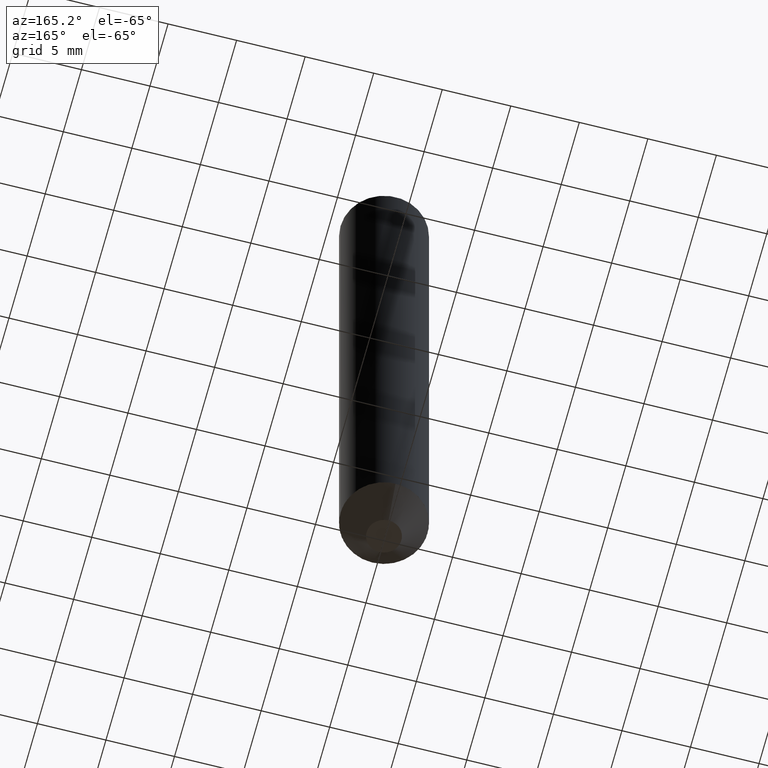
[diagram: clean part render]
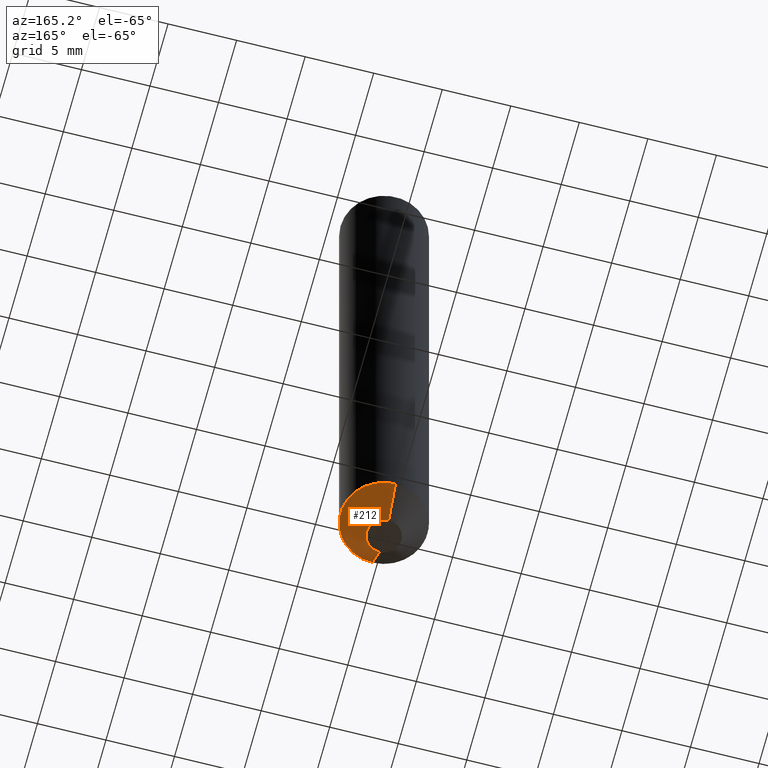
[diagram: same view with one face highlighted and labeled with its STEP entity id]
A machine part, auxiliary view. The second image highlights one B-rep face of the part: STEP entity #212.
In plain terms, the highlighted conical surface has half-angle 41.192 deg.
Its self-contained STEP definition (entity closure, byte-faithful):
#3 = CARTESIAN_POINT ( 'NONE',  ( -8.575622497213927331E-16, -0.1250000000000064115, -1.914303206326506412 ) ) ;
#11 = EDGE_CURVE ( 'NONE', #375, #396, #174, .T. ) ;
#22 = DIRECTION ( 'NONE',  ( -6.982962677686265922E-15, -1.000000000000000000, 4.370956789862834560E-15 ) ) ;
#35 = VERTEX_POINT ( 'NONE', #3 ) ;
#61 = DIRECTION ( 'NONE',  ( 6.982962677686265922E-15, 1.000000000000000000, -4.370956789862834560E-15 ) ) ;
#63 = EDGE_LOOP ( 'NONE', ( #146, #306, #177, #162 ) ) ;
#67 = AXIS2_PLACEMENT_3D ( 'NONE', #351, #349, #61 ) ;
#74 = CARTESIAN_POINT ( 'NONE',  ( -8.728703347107337392E-16, -0.1250000000000063005, -1.914303206326506412 ) ) ;
#80 = DIRECTION ( 'NONE',  ( 2.446198854709447971E-29, -3.490435867804550332E-15, -1.000000000000000000 ) ) ;
#103 = CARTESIAN_POINT ( 'NONE',  ( -6.110092342974980473E-16, -0.05000000000000672656, -1.999999999999999778 ) ) ;
#120 = VERTEX_POINT ( 'NONE', #236 ) ;
#126 = CARTESIAN_POINT ( 'NONE',  ( 8.881784197001692113E-16, 0.1249999999999929501, -1.914303206326507523 ) ) ;
#146 = ORIENTED_EDGE ( 'NONE', *, *, #11, .F. ) ;
#158 = FACE_OUTER_BOUND ( 'NONE', #63, .T. ) ;
#162 = ORIENTED_EDGE ( 'NONE', *, *, #354, .F. ) ;
#163 = DIRECTION ( 'NONE',  ( 4.679497495853047431E-15, 0.6585807243314101278, 0.7525100860049086515 ) ) ;
#164 = CIRCLE ( 'NONE', #67, 0.1249999999999996253 ) ;
#165 = LINE ( 'NONE', #74, #183 ) ;
#174 = CIRCLE ( 'NONE', #332, 0.04999999999999973910 ) ;
#177 = ORIENTED_EDGE ( 'NONE', *, *, #259, .T. ) ;
#183 = VECTOR ( 'NONE', #374, 39.37007874015748854 ) ;
#186 = DIRECTION ( 'NONE',  ( -2.446198854709447971E-29, 3.490435867804550332E-15, 1.000000000000000000 ) ) ;
#212 = ADVANCED_FACE ( 'NONE', ( #158 ), #296, .T. ) ;
#236 = CARTESIAN_POINT ( 'NONE',  ( 8.728703347108266276E-16, 0.1249999999999928252, -1.914303206326507523 ) ) ;
#248 = AXIS2_PLACEMENT_3D ( 'NONE', #272, #186, #22 ) ;
#256 = CARTESIAN_POINT ( 'NONE',  ( 6.217248937901331799E-16, 0.04999999999999275857, -2.000000000000000444 ) ) ;
#259 = EDGE_CURVE ( 'NONE', #120, #35, #164, .T. ) ;
#272 = CARTESIAN_POINT ( 'NONE',  ( 4.681369141675924040E-29, -6.683753399041078797E-15, -1.914303206326506857 ) ) ;
#277 = EDGE_CURVE ( 'NONE', #375, #120, #376, .T. ) ;
#296 = CONICAL_SURFACE ( 'NONE', #248, 0.1249999999999996253, 0.7189311452350203302 ) ;
#306 = ORIENTED_EDGE ( 'NONE', *, *, #277, .T. ) ;
#330 = CARTESIAN_POINT ( 'NONE',  ( 4.891000540212295148E-29, -6.982872561434885271E-15, -2.000000000000000000 ) ) ;
#332 = AXIS2_PLACEMENT_3D ( 'NONE', #330, #80, #364 ) ;
#349 = DIRECTION ( 'NONE',  ( 2.446198854709447971E-29, -3.490435867804550332E-15, -1.000000000000000000 ) ) ;
#351 = CARTESIAN_POINT ( 'NONE',  ( 4.681369141675924040E-29, -6.683753399041078797E-15, -1.914303206326506857 ) ) ;
#354 = EDGE_CURVE ( 'NONE', #396, #35, #165, .T. ) ;
#364 = DIRECTION ( 'NONE',  ( 6.982962677686265922E-15, 1.000000000000000000, -5.463695987328554836E-15 ) ) ;
#374 = DIRECTION ( 'NONE',  ( -4.598844618249824080E-15, -0.6585807243314047987, 0.7525100860049133145 ) ) ;
#375 = VERTEX_POINT ( 'NONE', #256 ) ;
#376 = LINE ( 'NONE', #126, #389 ) ;
#389 = VECTOR ( 'NONE', #163, 39.37007874015748854 ) ;
#396 = VERTEX_POINT ( 'NONE', #103 ) ;